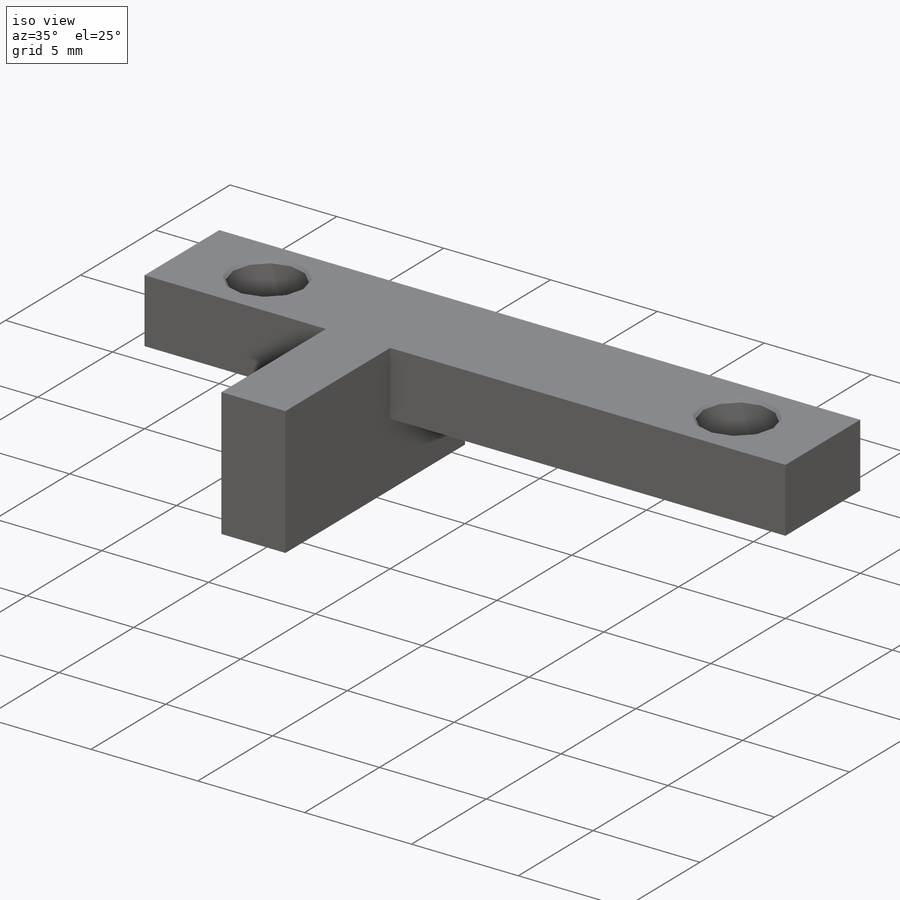
[diagram: iso view]
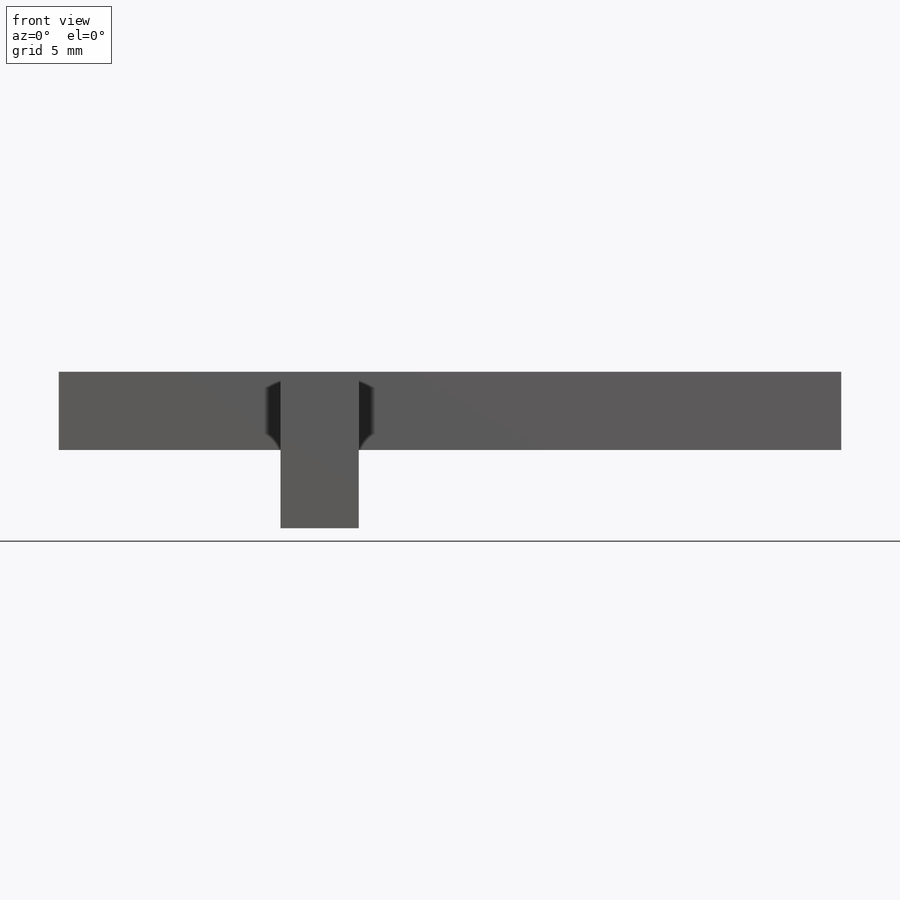
[diagram: front view]
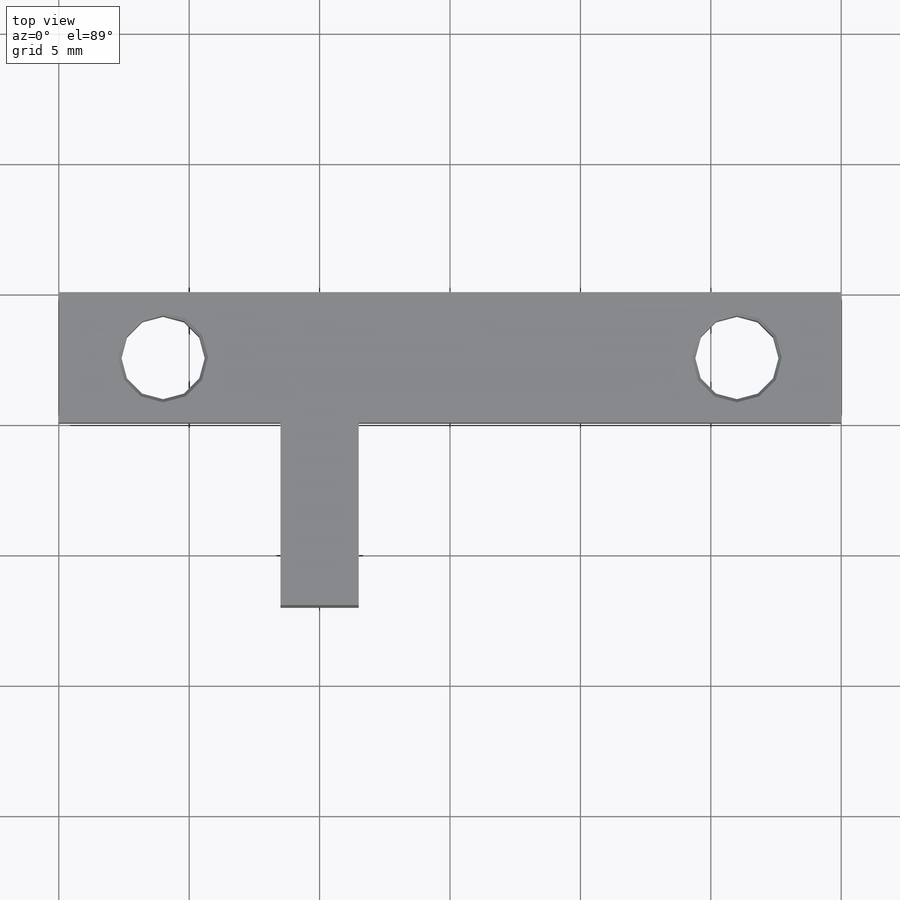
[diagram: top view]
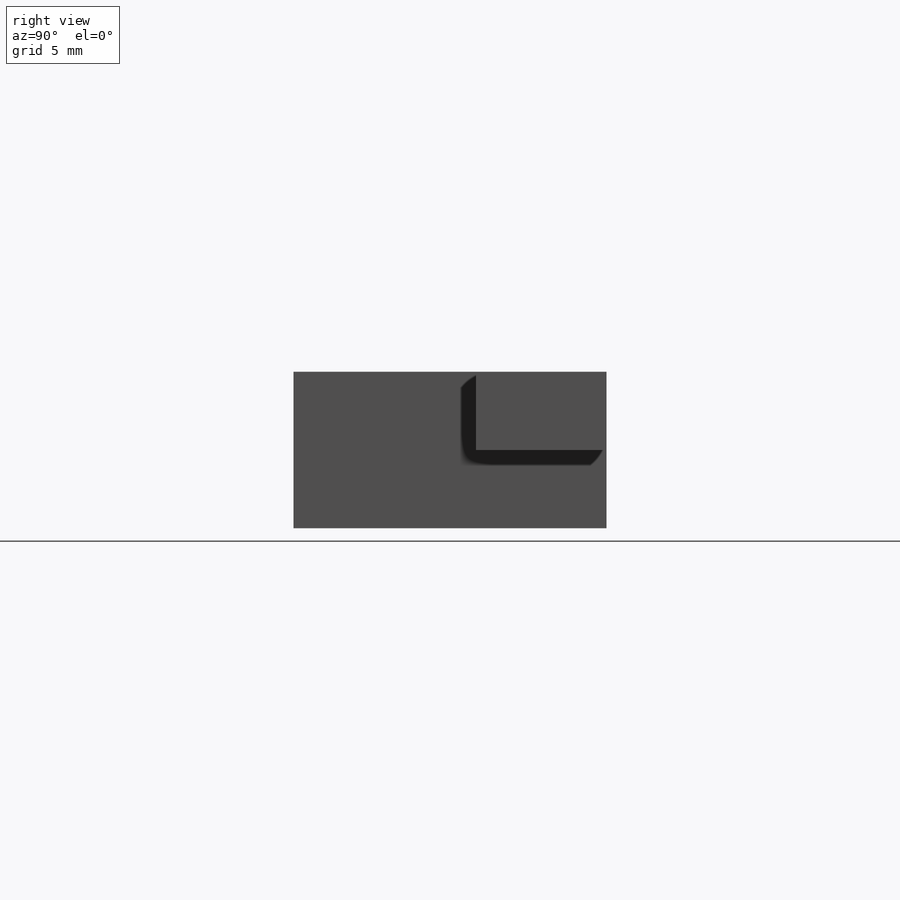
[diagram: right view]
SOLIDWORKS PART (.sldprt)
format: sldprt  version: not decoded by parser v0  size: 258,560 bytes
history: native  units: mm
features: sketch x6, cut_extrude x3, material x1, extrude x1, hole x1 (+14 scaffold rows collapsed)
feature tree (26):
  scaffold x14  (default folders/planes/origin — collapsed)
  material  "Материал <не указан>"
  sketch  "Эскиз1"  dims[D1=3.0mm D2=3.0mm D3=40.0mm D4=25.0mm]
  extrude  "Бобышка-Вытянуть1"  Depth=14mm
  sketch  "Эскиз2"  dims[D1=30.0mm D2=6.0mm]
  cut_extrude  "Вырез-Вытянуть1"  [1 undecoded]
  sketch  "Эскиз3"
  cut_extrude  "Вырез-Вытянуть3"  Depth=6mm
  hole  "Отверстие с зазором M31"  [1 undecoded]
  sketch  "Эскиз5"  dims[D1=22.0mm D2=3.0mm D3=3.5mm D4=11.0mm]
  sketch  "Эскиз4"  dims[hole-wizard template sketch: 47 standard entries collapsed; hole parameters kept: c15.Глубина сквозного отверстия=3.0mm c15.Диаметр передней зенковки=3.45mm c15.D4=~3.666174mm c15.Угол передней зенковки=90.0deg c15.Диаметр задней зенковки=3.45mm c15.D6=~9.919017mm c15.Угол задней зенковки=90.0deg]
  sketch  "Эскиз6"  dims[D1=3.3mm D2=5.0mm D3=3.0mm D4=1.0mm]
  cut_extrude  "Вырез-Вытянуть4"  [1 undecoded]
decode coverage: 7 of 11 modeling features carry decoded parameters
note: ~ marks probable driven/reference dimensions
note: 3 parameter values undecoded
summary: no parameter record found for 3 features
note: suppression state not decoded; provenance and decode notes live in map.json
